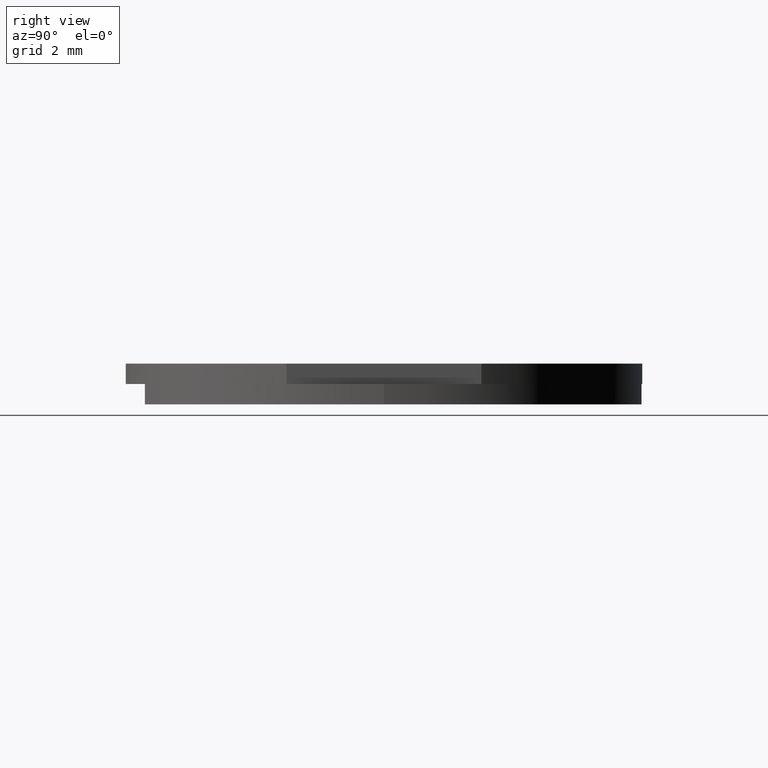
[diagram: clean part render]
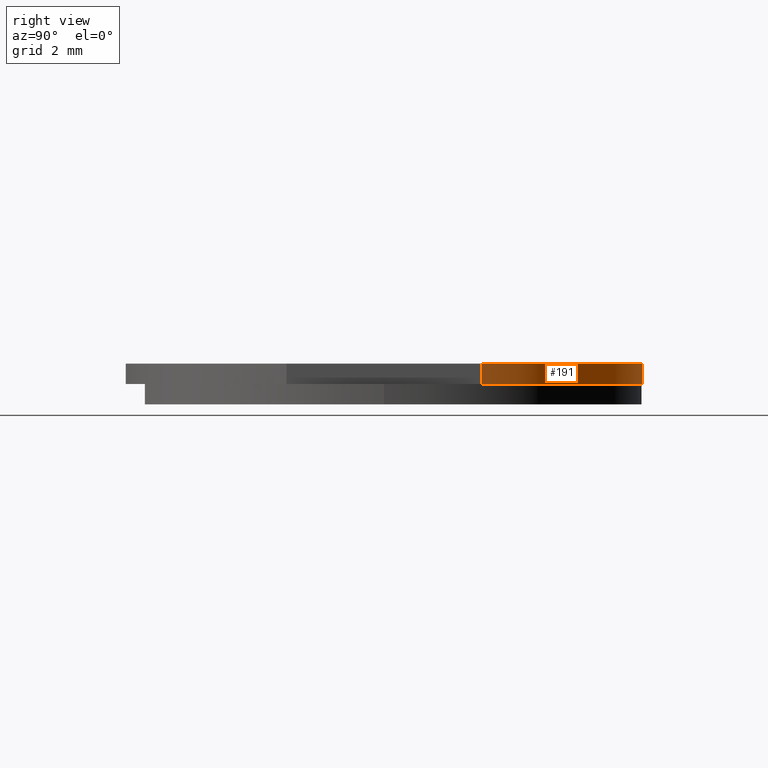
[diagram: same view with one face highlighted and labeled with its STEP entity id]
A machine part, right view. The second image highlights one B-rep face of the part: STEP entity #191.
In plain terms, the highlighted cylindrical surface (partial cylindrical patch) has radius 6.35 mm, axis along (0, -0, -1).
Its self-contained STEP definition (entity closure, byte-faithful):
#40 = VERTEX_POINT ( 'NONE', #174 ) ;
#52 = EDGE_CURVE ( 'NONE', #199, #471, #486, .T. ) ;
#62 = CYLINDRICAL_SURFACE ( 'NONE', #86, 6.349999999999999645 ) ;
#67 = FACE_OUTER_BOUND ( 'NONE', #120, .T. ) ;
#71 = DIRECTION ( 'NONE',  ( 0.0000000000000000000, 0.0000000000000000000, 1.000000000000000000 ) ) ;
#72 = ORIENTED_EDGE ( 'NONE', *, *, #345, .F. ) ;
#86 = AXIS2_PLACEMENT_3D ( 'NONE', #142, #361, #103 ) ;
#103 = DIRECTION ( 'NONE',  ( 0.0000000000000000000, -1.000000000000000000, 0.0000000000000000000 ) ) ;
#120 = EDGE_LOOP ( 'NONE', ( #72, #150, #298, #127 ) ) ;
#127 = ORIENTED_EDGE ( 'NONE', *, *, #52, .T. ) ;
#142 = CARTESIAN_POINT ( 'NONE',  ( 12.17957565082418014, -0.8299026143560144231, 4.486184743181586221 ) ) ;
#150 = ORIENTED_EDGE ( 'NONE', *, *, #379, .F. ) ;
#151 = DIRECTION ( 'NONE',  ( 0.0000000000000000000, -0.0000000000000000000, -1.000000000000000000 ) ) ;
#164 = AXIS2_PLACEMENT_3D ( 'NONE', #390, #221, #347 ) ;
#174 = CARTESIAN_POINT ( 'NONE',  ( 12.17957565082418014, 5.520097385643985000, 4.486184743181586221 ) ) ;
#182 = VECTOR ( 'NONE', #151, 1000.000000000000000 ) ;
#191 = ADVANCED_FACE ( 'NONE', ( #67 ), #62, .T. ) ;
#199 = VERTEX_POINT ( 'NONE', #324 ) ;
#221 = DIRECTION ( 'NONE',  ( 0.0000000000000000000, 0.0000000000000000000, 1.000000000000000000 ) ) ;
#227 = CARTESIAN_POINT ( 'NONE',  ( 12.17957565082418014, 5.520097385643985000, 3.986184743181585777 ) ) ;
#238 = CARTESIAN_POINT ( 'NONE',  ( 12.17957565082418014, -0.8299026143560144231, 4.486184743181586221 ) ) ;
#251 = CIRCLE ( 'NONE', #422, 6.349999999999999645 ) ;
#275 = LINE ( 'NONE', #355, #359 ) ;
#289 = CARTESIAN_POINT ( 'NONE',  ( 18.05957565082417915, 1.567616937180530634, 4.486184743181586221 ) ) ;
#298 = ORIENTED_EDGE ( 'NONE', *, *, #389, .T. ) ;
#324 = CARTESIAN_POINT ( 'NONE',  ( 18.05957565082417915, 1.567616937180531078, 3.986184743181585777 ) ) ;
#337 = VERTEX_POINT ( 'NONE', #484 ) ;
#345 = EDGE_CURVE ( 'NONE', #40, #471, #275, .T. ) ;
#347 = DIRECTION ( 'NONE',  ( 0.0000000000000000000, 1.000000000000000000, 0.0000000000000000000 ) ) ;
#355 = CARTESIAN_POINT ( 'NONE',  ( 12.17957565082418014, 5.520097385643985000, 4.486184743181586221 ) ) ;
#359 = VECTOR ( 'NONE', #436, 1000.000000000000000 ) ;
#361 = DIRECTION ( 'NONE',  ( 0.0000000000000000000, -0.0000000000000000000, -1.000000000000000000 ) ) ;
#379 = EDGE_CURVE ( 'NONE', #337, #40, #251, .T. ) ;
#389 = EDGE_CURVE ( 'NONE', #337, #199, #498, .T. ) ;
#390 = CARTESIAN_POINT ( 'NONE',  ( 12.17957565082418014, -0.8299026143560144231, 3.986184743181585777 ) ) ;
#422 = AXIS2_PLACEMENT_3D ( 'NONE', #238, #71, #454 ) ;
#436 = DIRECTION ( 'NONE',  ( 0.0000000000000000000, -0.0000000000000000000, -1.000000000000000000 ) ) ;
#454 = DIRECTION ( 'NONE',  ( 0.0000000000000000000, 1.000000000000000000, 0.0000000000000000000 ) ) ;
#471 = VERTEX_POINT ( 'NONE', #227 ) ;
#484 = CARTESIAN_POINT ( 'NONE',  ( 18.05957565082417915, 1.567616937180531078, 4.486184743181586221 ) ) ;
#486 = CIRCLE ( 'NONE', #164, 6.349999999999999645 ) ;
#498 = LINE ( 'NONE', #289, #182 ) ;